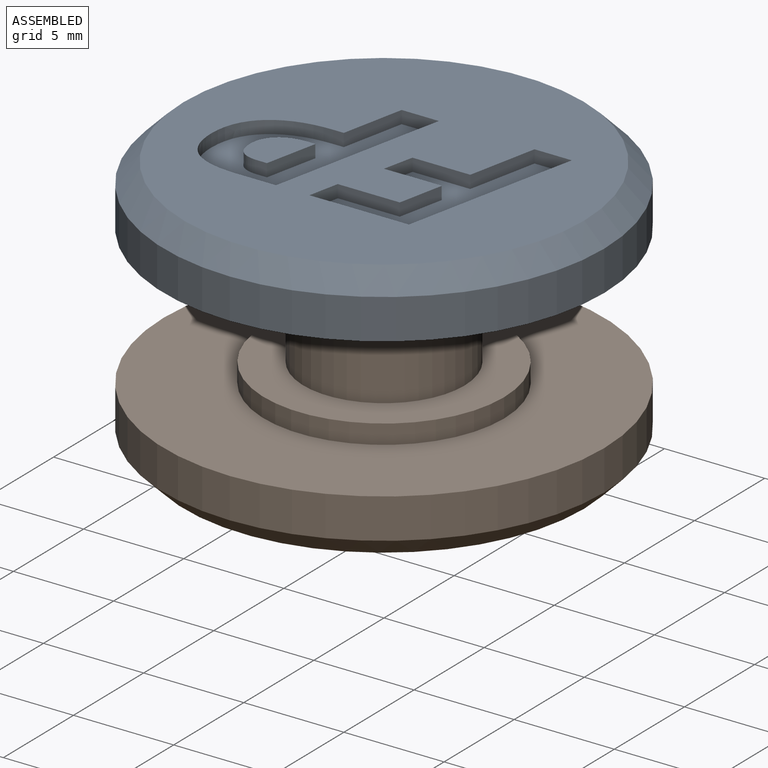
[diagram: assembled view]
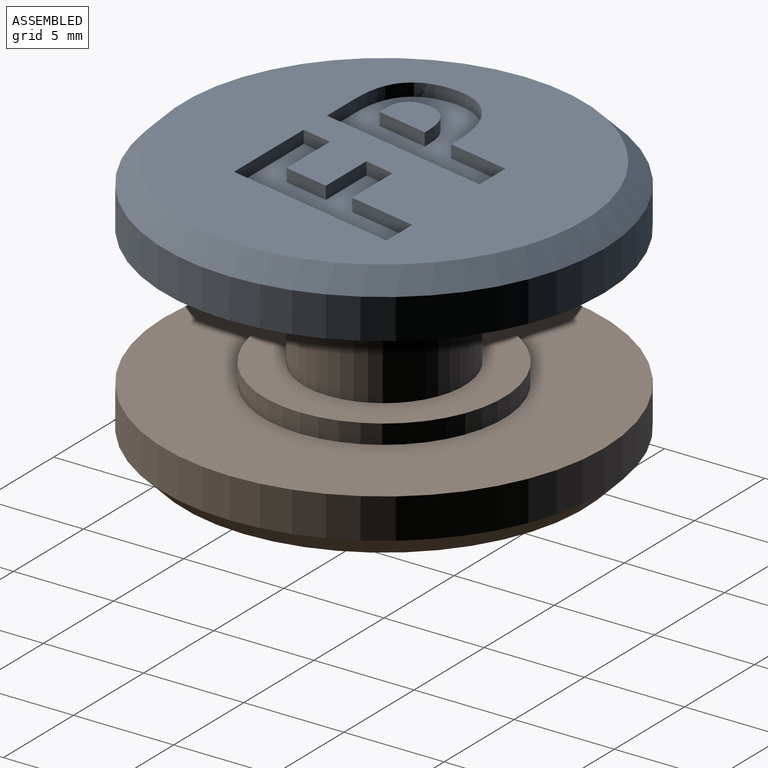
[diagram: assembled view, second angle]
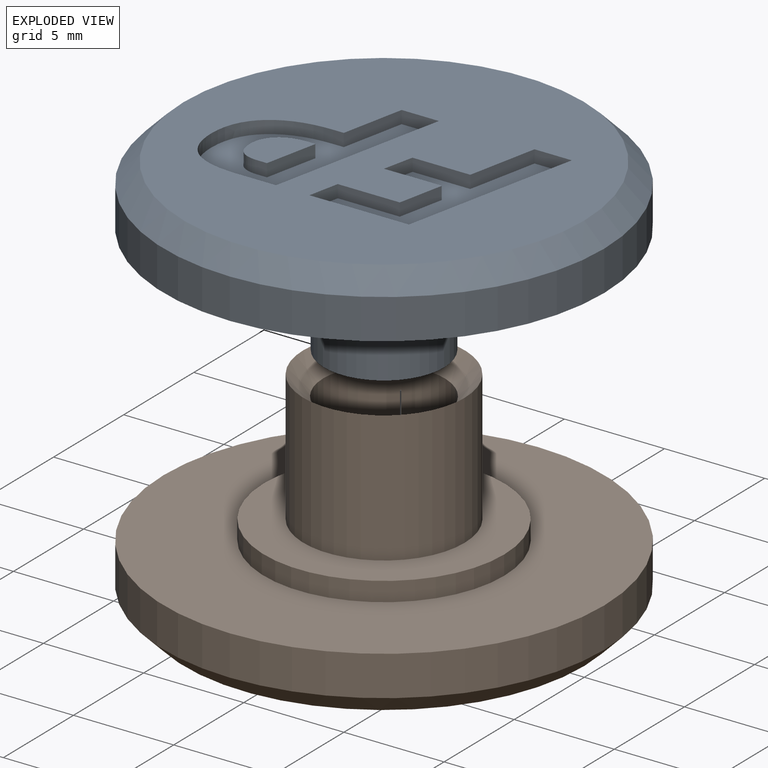
[diagram: exploded view]
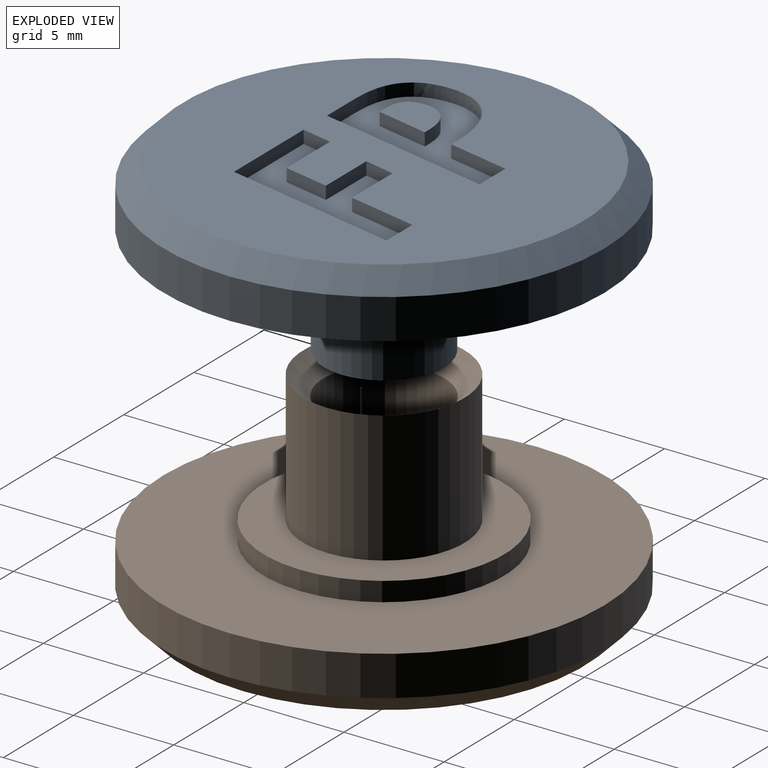
[diagram: exploded view, second angle]
ASSEMBLY  parts=2 mates=2
PART A: 36 faces, bbox 22x22x8.5 mm
  f0: plane 20x20mm, normal (0,0,-1), area 253.4mm2, adj f3,f8,f9,f10,f11,f12,f13,f14
  f1: cylinder r=11mm len=22mm, axis (0,0,-1), area 138.2mm2, adj f2,f3
  f2: plane 22x22mm, normal (0,0,1), area 267mm2, adj f1,f4
  f3: cone r=11mm half-angle=45deg, axis (0,0,1), area 93.3mm2, adj f0,f1
  f4: cylinder r=6mm len=12mm, axis (0,0,-1), area 36.2mm2, adj f2,f5
  f5: plane 12x12mm, normal (0,0,1), area 84.8mm2, adj f4,f7
  f6: plane 6x6mm, normal (0,0,1), area 28.3mm2, adj f7
  f7: cylinder r=3mm len=6mm, axis (0,0,-1), area 85.6mm2, adj f5,f6
  f8: plane 3.53x0.74mm, normal (-0.98,-0.2,0), area 2.3mm2, adj f0,f9,f17,f18
  f9: plane 2.89x0.64mm, normal (0,-1,0), area 1.8mm2, adj f0,f8,f10,f18
  f10: plane 1.55x0.64mm, normal (-0.98,-0.22,0), area 1mm2, adj f0,f9,f11,f18
  f11: plane 2.89x0.64mm, normal (0,1,0), area 1.8mm2, adj f0,f10,f12,f18
  f12: plane 2.3x0.64mm, normal (-0.98,-0.21,0), area 1.5mm2, adj f0,f11,f13,f18
  f13: plane 3.1x0.64mm, normal (0,-1,0), area 2mm2, adj f0,f12,f14,f18
  f14: plane 1.55x0.64mm, normal (-0.98,-0.21,0), area 1mm2, adj f0,f13,f15,f18
  f15: plane 4.97x0.64mm, normal (0,1,0), area 3.2mm2, adj f0,f14,f16,f18
  f16: plane 8.92x1.88mm, normal (0.98,0.21,0), area 5.8mm2, adj f0,f15,f17,f18
  f17: plane 1.86x0.64mm, normal (0,-1,0), area 1.2mm2, adj f0,f8,f16,f18
  f18: plane 8.92x6.85mm, normal (0,0,-1), area 25.9mm2, adj f8,f9,f10,f11,f12,f13,f14,f15
  f19: plane 2.65x0.64mm, normal (-0.98,-0.21,0), area 1.7mm2, adj f20,f33,f34,f35
  f20: plane 0.64x0.45mm, normal (0,-1,0), area 0.3mm2, adj f19,f21,f34,f35
  f21: extruded ~1.19x1.1mm, area 1.2mm2, adj f20,f22,f34,f35
  f22: extruded ~1.13x0.64mm, area 0.8mm2, adj f21,f23,f34,f35
  f23: extruded ~1.36x0.64mm, area 0.9mm2, adj f22,f33,f34,f35
  f24: extruded ~1.95x0.76mm, area 1.4mm2, adj f0,f25,f32,f34
  f25: extruded ~2.23x0.65mm, area 1.5mm2, adj f0,f24,f26,f34
  f26: plane 2.06x0.64mm, normal (0,1,0), area 1.3mm2, adj f0,f25,f27,f34
  f27: plane 8.92x1.88mm, normal (0.98,0.21,0), area 5.8mm2, adj f0,f26,f28,f34
  f28: plane 1.86x0.64mm, normal (0,-1,0), area 1.2mm2, adj f0,f27,f29,f34
  f29: plane 3.17x0.66mm, normal (-0.98,-0.2,0), area 2.1mm2, adj f0,f28,f30,f34
  f30: plane 0.64x0.53mm, normal (0,-1,0), area 0.3mm2, adj f0,f29,f31,f34
  f31: extruded ~2.85x0.84mm, area 1.9mm2, adj f0,f30,f32,f34
  f32: extruded ~2.31x1.04mm, area 1.7mm2, adj f0,f24,f31,f34
  f33: plane 0.64x0.34mm, normal (0,1,0), area 0.2mm2, adj f19,f23,f34,f35
  f34: plane 8.92x6.94mm, normal (0,0,-1), area 30.6mm2, adj f19,f20,f21,f22,f23,f24,f25,f26
  f35: plane 2.65x2.2mm, normal (0,0,-1), area 4.3mm2, adj f19,f20,f21,f22,f23,f33
PART B: 38 faces, bbox 22x22x10.5 mm
  f0: plane 20x20mm, normal (0,0,-1), area 253.4mm2, adj f3,f10,f11,f12,f13,f14,f15,f16
  f1: cylinder r=11mm len=22mm, axis (0,0,-1), area 138.2mm2, adj f2,f3
  f2: plane 22x22mm, normal (0,0,1), area 267mm2, adj f1,f4
  f3: cone r=11mm half-angle=45deg, axis (0,0,1), area 93.3mm2, adj f0,f1
  f4: cylinder r=6mm len=12mm, axis (0,0,-1), area 36.2mm2, adj f2,f5
  f5: plane 12x12mm, normal (0,0,1), area 62.2mm2, adj f4,f9
  f6: plane 6.05x6.05mm, normal (0,0,1), area 28.7mm2, adj f7
  f7: cylinder r=3.02mm len=6.5mm, axis (0,0,-1), area 123.5mm2, adj f6,f8
  f8: cone r=3.02mm half-angle=45deg, axis (0,0,1), area 31.3mm2, adj f7,f9
  f9: cylinder r=4.03mm len=8.05mm, axis (0,0,-1), area 165.4mm2, adj f5,f8
  f10: plane 3.53x0.74mm, normal (-0.98,-0.2,0), area 2.3mm2, adj f0,f11,f19,f20
  f11: plane 2.89x0.64mm, normal (0,-1,0), area 1.8mm2, adj f0,f10,f12,f20
  f12: plane 1.55x0.64mm, normal (-0.98,-0.22,0), area 1mm2, adj f0,f11,f13,f20
  f13: plane 2.89x0.64mm, normal (0,1,0), area 1.8mm2, adj f0,f12,f14,f20
  f14: plane 2.3x0.64mm, normal (-0.98,-0.21,0), area 1.5mm2, adj f0,f13,f15,f20
  f15: plane 3.1x0.64mm, normal (0,-1,0), area 2mm2, adj f0,f14,f16,f20
  f16: plane 1.55x0.64mm, normal (-0.98,-0.21,0), area 1mm2, adj f0,f15,f17,f20
  f17: plane 4.97x0.64mm, normal (0,1,0), area 3.2mm2, adj f0,f16,f18,f20
  f18: plane 8.92x1.88mm, normal (0.98,0.21,0), area 5.8mm2, adj f0,f17,f19,f20
  f19: plane 1.86x0.64mm, normal (0,-1,0), area 1.2mm2, adj f0,f10,f18,f20
  f20: plane 8.92x6.85mm, normal (0,0,-1), area 25.9mm2, adj f10,f11,f12,f13,f14,f15,f16,f17
  f21: plane 2.65x0.64mm, normal (-0.98,-0.21,0), area 1.7mm2, adj f22,f35,f36,f37
  f22: plane 0.64x0.45mm, normal (0,-1,0), area 0.3mm2, adj f21,f23,f36,f37
  f23: extruded ~1.19x1.1mm, area 1.2mm2, adj f22,f24,f36,f37
  f24: extruded ~1.13x0.64mm, area 0.8mm2, adj f23,f25,f36,f37
  f25: extruded ~1.36x0.64mm, area 0.9mm2, adj f24,f35,f36,f37
  f26: extruded ~1.95x0.76mm, area 1.4mm2, adj f0,f27,f34,f36
  f27: extruded ~2.23x0.65mm, area 1.5mm2, adj f0,f26,f28,f36
  f28: plane 2.06x0.64mm, normal (0,1,0), area 1.3mm2, adj f0,f27,f29,f36
  f29: plane 8.92x1.88mm, normal (0.98,0.21,0), area 5.8mm2, adj f0,f28,f30,f36
  f30: plane 1.86x0.64mm, normal (0,-1,0), area 1.2mm2, adj f0,f29,f31,f36
  f31: plane 3.17x0.66mm, normal (-0.98,-0.2,0), area 2.1mm2, adj f0,f30,f32,f36
  f32: plane 0.64x0.53mm, normal (0,-1,0), area 0.3mm2, adj f0,f31,f33,f36
  f33: extruded ~2.85x0.84mm, area 1.9mm2, adj f0,f32,f34,f36
  f34: extruded ~2.31x1.04mm, area 1.7mm2, adj f0,f26,f33,f36
  f35: plane 0.64x0.34mm, normal (0,1,0), area 0.2mm2, adj f21,f25,f36,f37
  f36: plane 8.92x6.94mm, normal (0,0,-1), area 30.6mm2, adj f21,f22,f23,f24,f25,f26,f27,f28
  f37: plane 2.65x2.2mm, normal (0,0,-1), area 4.3mm2, adj f21,f22,f23,f24,f25,f35
PLACE A rot(axis=(0,1,0),180deg) t=(0,0,13)mm
PLACE B rot(axis=(0,1,0),0deg) t=(0,0,0)mm
MATE fastened B.f4 <-> A.f1  axis (0,0,1) through (0,0,10)mm
MATE slider B.f4 <-> A.f4  axis (0,0,-1) through (0,0,9.5)mm
